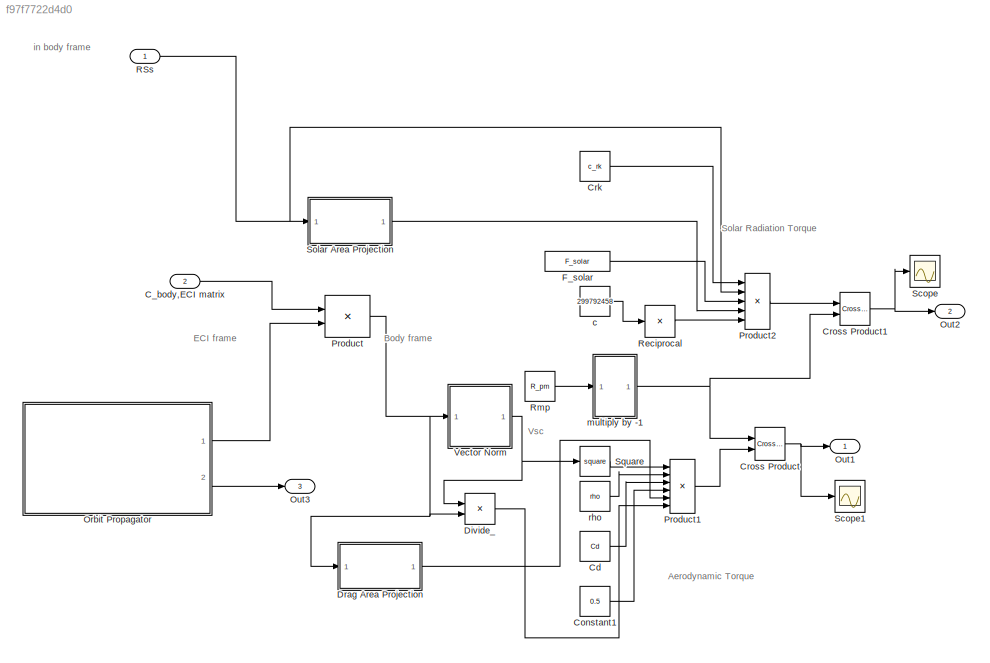
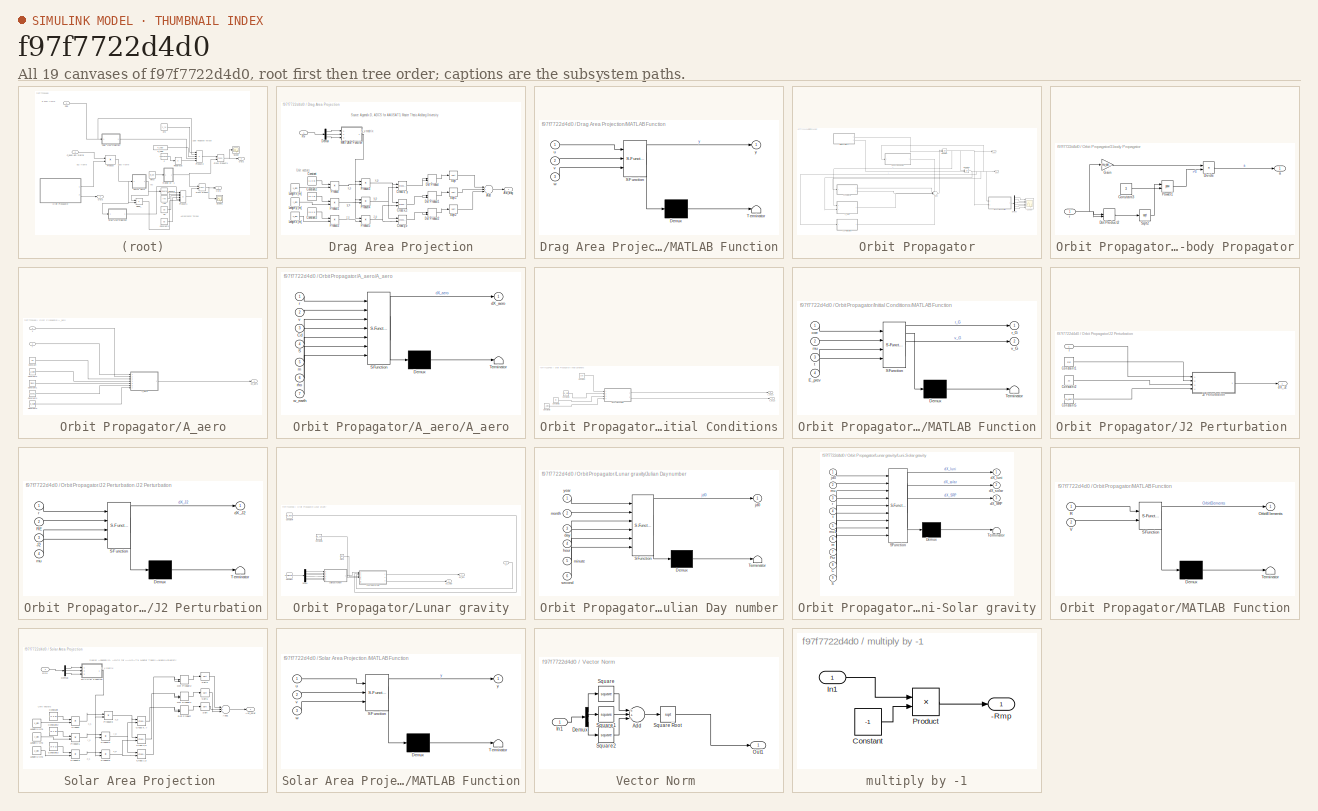
[diagram: thumbnail index - all 19 canvases of the model, root first then tree order]
MODEL slx_f97f7722d4d0
KIND model
CONFIG AbsTol = auto
CONFIG EnableMultiTasking = off
CONFIG FixedStep = auto
CONFIG MaxStep = auto
CONFIG MinStep = auto
CONFIG RelTol = 1e-3
CONFIG SampleTimeConstraint = Unconstrained
CONFIG Solver = VariableStepAuto
CONFIG SolverName = VariableStepAuto
CONFIG StartTime = 0.0
CONFIG StopTime = 10.0
BLOCK [Inport] C_body,ECI matrix
  IconDisplay = Port number
  Port = 2
BLOCK [Constant] Cd 
  Value = Cd
BLOCK [Constant] Constant1
  Value = 0.5
BLOCK [Constant] Crk
  Value = c_rk
BLOCK [Reference] Cross Product  REF=vrlib/Utilities/Cross Product
  Ports = [2, 1]
  SourceBlock = vrlib/Utilities/Cross Product
  SourceProductBaseCode = SL
  SourceProductName = Simulink
  SourceType = Cross Product
BLOCK [Reference] Cross Product1  REF=vrlib/Utilities/Cross Product
  Ports = [2, 1]
  SourceBlock = vrlib/Utilities/Cross Product
  SourceProductBaseCode = SL
  SourceProductName = Simulink
  SourceType = Cross Product
BLOCK [Product] Divide_
  InputSameDT = off
  Inputs = */
  OutDataTypeStr = Inherit: Inherit via internal rule
  Ports = [2, 1]
  RndMeth = Floor
  SaturateOnIntegerOverflow = off
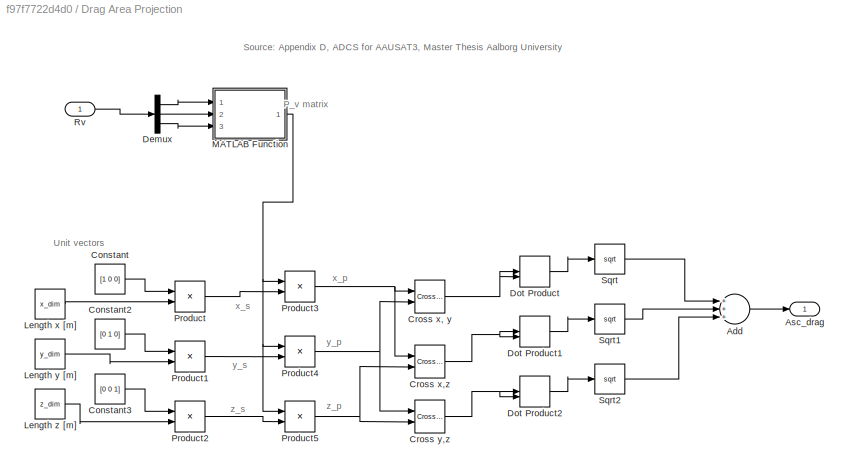
BLOCK [SubSystem] Drag Area Projection
  Ports = [1, 1]
  RequestExecContextInheritance = off
BLOCK [Sum] Drag Area Projection/Add
  InputSameDT = off
  Inputs = +++
  OutDataTypeStr = Inherit: Inherit via internal rule
  Ports = [3, 1]
  SaturateOnIntegerOverflow = off
BLOCK [Outport] Drag Area Projection/Asc_drag
  IconDisplay = Port number
BLOCK [Constant] Drag Area Projection/Constant
  Value = [1 0 0]
BLOCK [Constant] Drag Area Projection/Constant2
  Value = [0 1 0]
BLOCK [Constant] Drag Area Projection/Constant3
  Value = [0 0 1]
BLOCK [Reference] Drag Area Projection/Cross x, y  REF=vrlib/Utilities/Cross Product
  Ports = [2, 1]
  SourceBlock = vrlib/Utilities/Cross Product
  SourceProductBaseCode = SL
  SourceProductName = Simulink
  SourceType = Cross Product
BLOCK [Reference] Drag Area Projection/Cross x,z  REF=vrlib/Utilities/Cross Product
  Ports = [2, 1]
  SourceBlock = vrlib/Utilities/Cross Product
  SourceProductBaseCode = SL
  SourceProductName = Simulink
  SourceType = Cross Product
BLOCK [Reference] Drag Area Projection/Cross y,z  REF=vrlib/Utilities/Cross Product
  Ports = [2, 1]
  SourceBlock = vrlib/Utilities/Cross Product
  SourceProductBaseCode = SL
  SourceProductName = Simulink
  SourceType = Cross Product
BLOCK [Demux] Drag Area Projection/Demux
  DisplayOption = bar
  Outputs = 3
  Ports = [1, 3]
BLOCK [DotProduct] Drag Area Projection/Dot Product
  OutDataTypeStr = Inherit: Inherit via internal rule
BLOCK [DotProduct] Drag Area Projection/Dot Product1
  OutDataTypeStr = Inherit: Inherit via internal rule
BLOCK [DotProduct] Drag Area Projection/Dot Product2
  OutDataTypeStr = Inherit: Inherit via internal rule
BLOCK [Constant] Drag Area Projection/Length x [m]
  Value = x_dim
BLOCK [Constant] Drag Area Projection/Length y [m]
  Value = y_dim
BLOCK [Constant] Drag Area Projection/Length z [m]
  Value = z_dim
BLOCK [SubSystem] Drag Area Projection/MATLAB Function
  ErrorFcn = Stateflow.Translate.translate
  PermitHierarchicalResolution = ExplicitOnly
  Ports = [3, 1]
  RequestExecContextInheritance = off
  SFBlockType = MATLAB Function
  TreatAsAtomicUnit = on
BLOCK [Demux] Drag Area Projection/MATLAB Function/ Demux 
  Outputs = 1
  Ports = [1, 1]
BLOCK [S-Function] Drag Area Projection/MATLAB Function/ SFunction 
  EnableBusSupport = on
  FunctionName = sf_sfun
  PortCounts = [3 2]
  Ports = [3, 2]
  SFcnIsStateOwnerBlock = off
  SFunctionDeploymentMode = off
  Tag = Stateflow S-Function 11
BLOCK [Terminator] Drag Area Projection/MATLAB Function/ Terminator 
BLOCK [Inport] Drag Area Projection/MATLAB Function/u
  IconDisplay = Port number
BLOCK [Inport] Drag Area Projection/MATLAB Function/v
  IconDisplay = Port number
  Port = 2
BLOCK [Inport] Drag Area Projection/MATLAB Function/w
  IconDisplay = Port number
  Port = 3
BLOCK [Outport] Drag Area Projection/MATLAB Function/y
  IconDisplay = Port number
BLOCK [Product] Drag Area Projection/Product
  InputSameDT = off
  OutDataTypeStr = Inherit: Inherit via internal rule
  Ports = [2, 1]
  RndMeth = Floor
  SaturateOnIntegerOverflow = off
BLOCK [Product] Drag Area Projection/Product1
  InputSameDT = off
  OutDataTypeStr = Inherit: Inherit via internal rule
  Ports = [2, 1]
  RndMeth = Floor
  SaturateOnIntegerOverflow = off
BLOCK [Product] Drag Area Projection/Product2
  InputSameDT = off
  OutDataTypeStr = Inherit: Inherit via internal rule
  Ports = [2, 1]
  RndMeth = Floor
  SaturateOnIntegerOverflow = off
BLOCK [Product] Drag Area Projection/Product3
  InputSameDT = off
  Multiplication = Matrix(*)
  OutDataTypeStr = Inherit: Inherit via internal rule
  Ports = [2, 1]
  RndMeth = Floor
  SaturateOnIntegerOverflow = off
BLOCK [Product] Drag Area Projection/Product4
  InputSameDT = off
  Multiplication = Matrix(*)
  OutDataTypeStr = Inherit: Inherit via internal rule
  Ports = [2, 1]
  RndMeth = Floor
  SaturateOnIntegerOverflow = off
BLOCK [Product] Drag Area Projection/Product5
  InputSameDT = off
  Multiplication = Matrix(*)
  OutDataTypeStr = Inherit: Inherit via internal rule
  Ports = [2, 1]
  RndMeth = Floor
  SaturateOnIntegerOverflow = off
BLOCK [Inport] Drag Area Projection/Rv 
  IconDisplay = Port number
BLOCK [Sqrt] Drag Area Projection/Sqrt
BLOCK [Sqrt] Drag Area Projection/Sqrt1
BLOCK [Sqrt] Drag Area Projection/Sqrt2
BLOCK [Constant] F_solar
  Value = F_solar
BLOCK [SubSystem] Orbit Propagator
  Ports = [0, 2]
  RequestExecContextInheritance = off
BLOCK [SubSystem] Orbit Propagator/2-body Propagator
  Ports = [1, 1]
  RequestExecContextInheritance = off
BLOCK [Constant] Orbit Propagator/2-body Propagator/Constant3
  Value = 3
BLOCK [Product] Orbit Propagator/2-body Propagator/Divide
  InputSameDT = off
  Inputs = */
  OutDataTypeStr = Inherit: Inherit via internal rule
  Ports = [2, 1]
  RndMeth = Floor
  SaturateOnIntegerOverflow = off
BLOCK [DotProduct] Orbit Propagator/2-body Propagator/Dot Product2
  OutDataTypeStr = Inherit: Inherit via internal rule
BLOCK [Gain] Orbit Propagator/2-body Propagator/Gain
  Gain = -mu_earth
  OutDataTypeStr = Inherit: Inherit via internal rule
  ParamDataTypeStr = Inherit: Inherit via internal rule
  SaturateOnIntegerOverflow = off
BLOCK [Math] Orbit Propagator/2-body Propagator/Power1
  Operator = pow
  Ports = [2, 1]
BLOCK [Sqrt] Orbit Propagator/2-body Propagator/Sqrt2
BLOCK [Outport] Orbit Propagator/2-body Propagator/a
  IconDisplay = Port number
  VectorParamsAs1DForOutWhenUnconnected = off
BLOCK [Inport] Orbit Propagator/2-body Propagator/r
  IconDisplay = Port number
BLOCK [SubSystem] Orbit Propagator/A_aero
  Commented = on
  Ports = [2, 1]
  RequestExecContextInheritance = off
BLOCK [SubSystem] Orbit Propagator/A_aero/A_aero
  ErrorFcn = Stateflow.Translate.translate
  PermitHierarchicalResolution = ExplicitOnly
  Ports = [7, 1]
  RequestExecContextInheritance = off
  SFBlockType = MATLAB Function
  TreatAsAtomicUnit = on
BLOCK [Demux] Orbit Propagator/A_aero/A_aero/ Demux 
  Outputs = 1
  Ports = [1, 1]
BLOCK [S-Function] Orbit Propagator/A_aero/A_aero/ SFunction 
  EnableBusSupport = on
  FunctionName = sf_sfun
  PortCounts = [7 2]
  Ports = [7, 2]
  SFcnIsStateOwnerBlock = off
  SFunctionDeploymentMode = off
  Tag = Stateflow S-Function 2
BLOCK [Terminator] Orbit Propagator/A_aero/A_aero/ Terminator 
BLOCK [Inport] Orbit Propagator/A_aero/A_aero/Cd
  IconDisplay = Port number
  Port = 3
BLOCK [Inport] Orbit Propagator/A_aero/A_aero/S
  IconDisplay = Port number
  Port = 4
BLOCK [Outport] Orbit Propagator/A_aero/A_aero/dX_aero
  IconDisplay = Port number
  VectorParamsAs1DForOutWhenUnconnected = off
BLOCK [Inport] Orbit Propagator/A_aero/A_aero/m
  IconDisplay = Port number
  Port = 5
BLOCK [Inport] Orbit Propagator/A_aero/A_aero/r
  IconDisplay = Port number
BLOCK [Inport] Orbit Propagator/A_aero/A_aero/rho
  IconDisplay = Port number
  Port = 6
BLOCK [Inport] Orbit Propagator/A_aero/A_aero/v
  IconDisplay = Port number
  Port = 2
BLOCK [Inport] Orbit Propagator/A_aero/A_aero/w_earth
  IconDisplay = Port number
  Port = 7
BLOCK [Constant] Orbit Propagator/A_aero/Constant
  Value = Cd
BLOCK [Constant] Orbit Propagator/A_aero/Constant1
  Value = mass
BLOCK [Constant] Orbit Propagator/A_aero/Constant2
  Value = S_norm
BLOCK [Constant] Orbit Propagator/A_aero/Constant3
  Value = w_earth
BLOCK [Constant] Orbit Propagator/A_aero/Constant4
  Value = 2.01e-12
BLOCK [Outport] Orbit Propagator/A_aero/dX_aero
  IconDisplay = Port number
  VectorParamsAs1DForOutWhenUnconnected = off
BLOCK [Inport] Orbit Propagator/A_aero/r
  IconDisplay = Port number
  Port = 2
BLOCK [Inport] Orbit Propagator/A_aero/v
  IconDisplay = Port number
BLOCK [Demux] Orbit Propagator/Demux
  DisplayOption = bar
  Outputs = 6
  Ports = [1, 6]
BLOCK [SubSystem] Orbit Propagator/Initial Conditions
  Ports = [0, 2]
  RequestExecContextInheritance = off
BLOCK [Constant] Orbit Propagator/Initial Conditions/Constant
  Value = coe
BLOCK [Constant] Orbit Propagator/Initial Conditions/Constant1
  Value = mu_earth
BLOCK [Constant] Orbit Propagator/Initial Conditions/Constant2
  Value = t0
BLOCK [Constant] Orbit Propagator/Initial Conditions/Constant3
  Value = E_prev
BLOCK [SubSystem] Orbit Propagator/Initial Conditions/MATLAB Function
  ErrorFcn = Stateflow.Translate.translate
  PermitHierarchicalResolution = ExplicitOnly
  Ports = [4, 2]
  RequestExecContextInheritance = off
  SFBlockType = MATLAB Function
  TreatAsAtomicUnit = on
BLOCK [Demux] Orbit Propagator/Initial Conditions/MATLAB Function/ Demux 
  Outputs = 1
  Ports = [1, 1]
BLOCK [S-Function] Orbit Propagator/Initial Conditions/MATLAB Function/ SFunction 
  EnableBusSupport = on
  FunctionName = sf_sfun
  PortCounts = [4 3]
  Ports = [4, 3]
  SFcnIsStateOwnerBlock = off
  SFunctionDeploymentMode = off
  Tag = Stateflow S-Function 3
BLOCK [Terminator] Orbit Propagator/Initial Conditions/MATLAB Function/ Terminator 
BLOCK [Inport] Orbit Propagator/Initial Conditions/MATLAB Function/E_prev
  IconDisplay = Port number
  Port = 4
BLOCK [Inport] Orbit Propagator/Initial Conditions/MATLAB Function/coe
  IconDisplay = Port number
BLOCK [Inport] Orbit Propagator/Initial Conditions/MATLAB Function/mu
  IconDisplay = Port number
  Port = 2
BLOCK [Outport] Orbit Propagator/Initial Conditions/MATLAB Function/r_G
  IconDisplay = Port number
  VectorParamsAs1DForOutWhenUnconnected = off
BLOCK [Inport] Orbit Propagator/Initial Conditions/MATLAB Function/t
  IconDisplay = Port number
  Port = 3
BLOCK [Outport] Orbit Propagator/Initial Conditions/MATLAB Function/v_G
  IconDisplay = Port number
  Port = 2
  VectorParamsAs1DForOutWhenUnconnected = off
BLOCK [Outport] Orbit Propagator/Initial Conditions/r_eci_0
  IconDisplay = Port number
  Port = 2
  VectorParamsAs1DForOutWhenUnconnected = off
BLOCK [Outport] Orbit Propagator/Initial Conditions/v_eci_0
  IconDisplay = Port number
  VectorParamsAs1DForOutWhenUnconnected = off
BLOCK [Integrator] Orbit Propagator/Integrator
  InitialCondition = v0
  InitialConditionSource = external
  Ports = [2, 1]
BLOCK [Integrator] Orbit Propagator/Integrator1
  InitialCondition = v0
  InitialConditionSource = external
  Ports = [2, 1]
BLOCK [SubSystem] Orbit Propagator/J2 Perturbation 
  Ports = [1, 1]
  RequestExecContextInheritance = off
BLOCK [Constant] Orbit Propagator/J2 Perturbation /Constant1
  Value = RE
BLOCK [Constant] Orbit Propagator/J2 Perturbation /Constant2
  Value = J2
BLOCK [Constant] Orbit Propagator/J2 Perturbation /Constant5
  Value = mu_earth
BLOCK [SubSystem] Orbit Propagator/J2 Perturbation /J2 Perturbation
  ErrorFcn = Stateflow.Translate.translate
  PermitHierarchicalResolution = ExplicitOnly
  Ports = [4, 1]
  RequestExecContextInheritance = off
  SFBlockType = MATLAB Function
  TreatAsAtomicUnit = on
BLOCK [Demux] Orbit Propagator/J2 Perturbation /J2 Perturbation/ Demux 
  Outputs = 1
  Ports = [1, 1]
BLOCK [S-Function] Orbit Propagator/J2 Perturbation /J2 Perturbation/ SFunction 
  EnableBusSupport = on
  FunctionName = sf_sfun
  PortCounts = [4 2]
  Ports = [4, 2]
  SFcnIsStateOwnerBlock = off
  SFunctionDeploymentMode = off
  Tag = Stateflow S-Function 1
BLOCK [Terminator] Orbit Propagator/J2 Perturbation /J2 Perturbation/ Terminator 
BLOCK [Inport] Orbit Propagator/J2 Perturbation /J2 Perturbation/J2
  IconDisplay = Port number
  Port = 3
BLOCK [Inport] Orbit Propagator/J2 Perturbation /J2 Perturbation/RE
  IconDisplay = Port number
  Port = 2
BLOCK [Outport] Orbit Propagator/J2 Perturbation /J2 Perturbation/dX_J2
  IconDisplay = Port number
  VectorParamsAs1DForOutWhenUnconnected = off
BLOCK [Inport] Orbit Propagator/J2 Perturbation /J2 Perturbation/mu
  IconDisplay = Port number
  Port = 4
BLOCK [Inport] Orbit Propagator/J2 Perturbation /J2 Perturbation/r
  IconDisplay = Port number
BLOCK [Outport] Orbit Propagator/J2 Perturbation /dX_J2
  IconDisplay = Port number
  VectorParamsAs1DForOutWhenUnconnected = off
BLOCK [Inport] Orbit Propagator/J2 Perturbation /r
  IconDisplay = Port number
BLOCK [SubSystem] Orbit Propagator/Lunar gravity
  Commented = on
  Ports = [1, 2]
  RequestExecContextInheritance = off
BLOCK [Clock] Orbit Propagator/Lunar gravity/Clock
BLOCK [Constant] Orbit Propagator/Lunar gravity/Constant
  Value = [year,month,day,hours,minutes,seconds]
BLOCK [Constant] Orbit Propagator/Lunar gravity/Constant4
  Value = mu_moon
BLOCK [Constant] Orbit Propagator/Lunar gravity/Constant6
  Value = mu_sun
BLOCK [Demux] Orbit Propagator/Lunar gravity/Demux
  DisplayOption = bar
  Outputs = 6
  Ports = [1, 6]
BLOCK [SubSystem] Orbit Propagator/Lunar gravity/Julian Day number
  ErrorFcn = Stateflow.Translate.translate
  PermitHierarchicalResolution = ExplicitOnly
  Ports = [6, 1]
  RequestExecContextInheritance = off
  SFBlockType = MATLAB Function
  TreatAsAtomicUnit = on
BLOCK [Demux] Orbit Propagator/Lunar gravity/Julian Day number/ Demux 
  Outputs = 1
  Ports = [1, 1]
BLOCK [S-Function] Orbit Propagator/Lunar gravity/Julian Day number/ SFunction 
  EnableBusSupport = on
  FunctionName = sf_sfun
  PortCounts = [6 2]
  Ports = [6, 2]
  SFcnIsStateOwnerBlock = off
  SFunctionDeploymentMode = off
  Tag = Stateflow S-Function 4
BLOCK [Terminator] Orbit Propagator/Lunar gravity/Julian Day number/ Terminator 
BLOCK [Inport] Orbit Propagator/Lunar gravity/Julian Day number/day
  IconDisplay = Port number
  Port = 3
BLOCK [Inport] Orbit Propagator/Lunar gravity/Julian Day number/hour
  IconDisplay = Port number
  Port = 4
BLOCK [Outport] Orbit Propagator/Lunar gravity/Julian Day number/jd0
  IconDisplay = Port number
  VectorParamsAs1DForOutWhenUnconnected = off
BLOCK [Inport] Orbit Propagator/Lunar gravity/Julian Day number/minute
  IconDisplay = Port number
  Port = 5
BLOCK [Inport] Orbit Propagator/Lunar gravity/Julian Day number/month
  IconDisplay = Port number
  Port = 2
BLOCK [Inport] Orbit Propagator/Lunar gravity/Julian Day number/second
  IconDisplay = Port number
  Port = 6
BLOCK [Inport] Orbit Propagator/Lunar gravity/Julian Day number/year
  IconDisplay = Port number
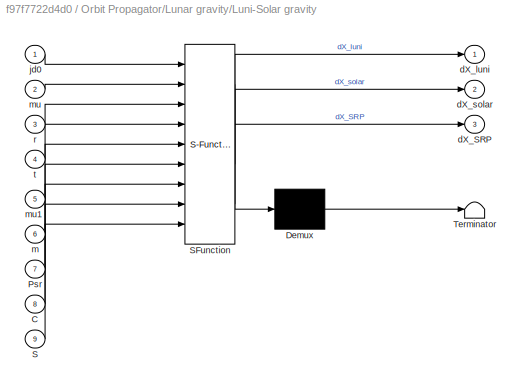
BLOCK [SubSystem] Orbit Propagator/Lunar gravity/Luni-Solar gravity
  ErrorFcn = Stateflow.Translate.translate
  PermitHierarchicalResolution = ExplicitOnly
  Ports = [9, 3]
  RequestExecContextInheritance = off
  SFBlockType = MATLAB Function
  TreatAsAtomicUnit = on
BLOCK [Demux] Orbit Propagator/Lunar gravity/Luni-Solar gravity/ Demux 
  Outputs = 1
  Ports = [1, 1]
BLOCK [S-Function] Orbit Propagator/Lunar gravity/Luni-Solar gravity/ SFunction 
  EnableBusSupport = on
  FunctionName = sf_sfun
  PortCounts = [9 4]
  Ports = [9, 4]
  SFcnIsStateOwnerBlock = off
  SFunctionDeploymentMode = off
  Tag = Stateflow S-Function 5
BLOCK [Terminator] Orbit Propagator/Lunar gravity/Luni-Solar gravity/ Terminator 
BLOCK [Inport] Orbit Propagator/Lunar gravity/Luni-Solar gravity/C
  IconDisplay = Port number
  Port = 8
BLOCK [Inport] Orbit Propagator/Lunar gravity/Luni-Solar gravity/Psr
  IconDisplay = Port number
  Port = 7
BLOCK [Inport] Orbit Propagator/Lunar gravity/Luni-Solar gravity/S
  IconDisplay = Port number
  Port = 9
BLOCK [Outport] Orbit Propagator/Lunar gravity/Luni-Solar gravity/dX_SRP
  IconDisplay = Port number
  Port = 3
  VectorParamsAs1DForOutWhenUnconnected = off
BLOCK [Outport] Orbit Propagator/Lunar gravity/Luni-Solar gravity/dX_luni
  IconDisplay = Port number
  VectorParamsAs1DForOutWhenUnconnected = off
BLOCK [Outport] Orbit Propagator/Lunar gravity/Luni-Solar gravity/dX_solar
  IconDisplay = Port number
  Port = 2
  VectorParamsAs1DForOutWhenUnconnected = off
BLOCK [Inport] Orbit Propagator/Lunar gravity/Luni-Solar gravity/jd0
  IconDisplay = Port number
BLOCK [Inport] Orbit Propagator/Lunar gravity/Luni-Solar gravity/m
  IconDisplay = Port number
  Port = 6
BLOCK [Inport] Orbit Propagator/Lunar gravity/Luni-Solar gravity/mu
  IconDisplay = Port number
  Port = 2
BLOCK [Inport] Orbit Propagator/Lunar gravity/Luni-Solar gravity/mu1
  IconDisplay = Port number
  Port = 5
BLOCK [Inport] Orbit Propagator/Lunar gravity/Luni-Solar gravity/r
  IconDisplay = Port number
  Port = 3
BLOCK [Inport] Orbit Propagator/Lunar gravity/Luni-Solar gravity/t
  IconDisplay = Port number
  Port = 4
BLOCK [Outport] Orbit Propagator/Lunar gravity/dX_luni
  IconDisplay = Port number
  VectorParamsAs1DForOutWhenUnconnected = off
BLOCK [Outport] Orbit Propagator/Lunar gravity/dX_solar
  IconDisplay = Port number
  Port = 2
  VectorParamsAs1DForOutWhenUnconnected = off
BLOCK [Inport] Orbit Propagator/Lunar gravity/r
  IconDisplay = Port number
BLOCK [SubSystem] Orbit Propagator/MATLAB Function
  ErrorFcn = Stateflow.Translate.translate
  PermitHierarchicalResolution = ExplicitOnly
  Ports = [2, 1]
  RequestExecContextInheritance = off
  SFBlockType = MATLAB Function
  TreatAsAtomicUnit = on
BLOCK [Demux] Orbit Propagator/MATLAB Function/ Demux 
  Outputs = 1
  Ports = [1, 1]
BLOCK [S-Function] Orbit Propagator/MATLAB Function/ SFunction 
  EnableBusSupport = on
  FunctionName = sf_sfun
  PortCounts = [2 2]
  Ports = [2, 2]
  SFcnIsStateOwnerBlock = off
  SFunctionDeploymentMode = off
  Tag = Stateflow S-Function 9
BLOCK [Terminator] Orbit Propagator/MATLAB Function/ Terminator 
BLOCK [Outport] Orbit Propagator/MATLAB Function/OrbitElements
  IconDisplay = Port number
  VectorParamsAs1DForOutWhenUnconnected = off
BLOCK [Inport] Orbit Propagator/MATLAB Function/R
  IconDisplay = Port number
BLOCK [Inport] Orbit Propagator/MATLAB Function/V
  IconDisplay = Port number
  Port = 2
BLOCK [Scope] Orbit Propagator/Scope
  Floating = off
  NumInputPorts = 6
  Ports = [6]
  ScopeSpecificationString = Simulink.scopes.TimeScopeBlockCfg('CurrentConfiguration', extmgr.ConfigurationSet(extmgr.Configuration('Core','General UI',true),extmgr.Configuration('Core','Source UI',true),extmgr.Configuration('Sources','WiredSimulink',true,'DataLoggingVariableName','ScopeData2'),extmgr.Configuration('Visuals','Time Domain',true,'SerializedDisplays',{struct('MinYLimReal','6606562.10759','MaxYLimReal','7662454.0...<+4798ch>
BLOCK [Sum] Orbit Propagator/Sum
  IconShape = round
  InputSameDT = off
  Inputs = +++++
  OutDataTypeStr = Inherit: Inherit via internal rule
  Ports = [5, 1]
  SaturateOnIntegerOverflow = off
BLOCK [Outport] Orbit Propagator/r_eci
  IconDisplay = Port number
  Port = 2
  VectorParamsAs1DForOutWhenUnconnected = off
BLOCK [Outport] Orbit Propagator/v_eci
  IconDisplay = Port number
  VectorParamsAs1DForOutWhenUnconnected = off
BLOCK [Outport] Out1
  IconDisplay = Port number
BLOCK [Outport] Out2
  IconDisplay = Port number
  Port = 2
BLOCK [Outport] Out3
  IconDisplay = Port number
  Port = 3
BLOCK [Product] Product
  InputSameDT = off
  Multiplication = Matrix(*)
  OutDataTypeStr = Inherit: Inherit via internal rule
  Ports = [2, 1]
  RndMeth = Floor
  SaturateOnIntegerOverflow = off
BLOCK [Product] Product1
  InputSameDT = off
  Inputs = 6
  OutDataTypeStr = Inherit: Inherit via internal rule
  Ports = [6, 1]
  RndMeth = Floor
  SaturateOnIntegerOverflow = off
BLOCK [Product] Product2
  InputSameDT = off
  Inputs = 5
  OutDataTypeStr = Inherit: Inherit via internal rule
  Ports = [5, 1]
  RndMeth = Floor
  SaturateOnIntegerOverflow = off
BLOCK [Inport] RSs 
  IconDisplay = Port number
BLOCK [Product] Reciprocal
  InputSameDT = off
  Inputs = /
  OutDataTypeStr = Inherit: Inherit via internal rule
  Ports = [1, 1]
  RndMeth = Floor
  SaturateOnIntegerOverflow = off
BLOCK [Constant] Rmp 
  Value = R_pm
BLOCK [Scope] Scope
  Floating = off
  NumInputPorts = 1
  Ports = [1]
  ScopeSpecificationString = Simulink.scopes.TimeScopeBlockCfg('CurrentConfiguration', extmgr.ConfigurationSet(extmgr.Configuration('Core','General UI',true),extmgr.Configuration('Core','Source UI',true),extmgr.Configuration('Sources','WiredSimulink',true,'DataLoggingVariableName','ScopeData1'),extmgr.Configuration('Visuals','Time Domain',true,'SerializedDisplays',{struct('MinYLimReal','-0.00000063','MaxYLimReal','0.00000007'...<+1437ch>
BLOCK [Scope] Scope1
  Floating = off
  NumInputPorts = 1
  Ports = [1]
  ScopeSpecificationString = Simulink.scopes.TimeScopeBlockCfg('CurrentConfiguration', extmgr.ConfigurationSet(extmgr.Configuration('Core','General UI',true),extmgr.Configuration('Core','Source UI',true),extmgr.Configuration('Sources','WiredSimulink',true,'DataLoggingVariableName','ScopeData2'),extmgr.Configuration('Visuals','Time Domain',true,'SerializedDisplays',{struct('MinYLimReal','-0.0000000023','MaxYLimReal','0.0000000...<+1450ch>
BLOCK [SubSystem] Solar Area Projection 
  Ports = [1, 1]
  RequestExecContextInheritance = off
BLOCK [Sum] Solar Area Projection /Add1
  InputSameDT = off
  Inputs = +++
  OutDataTypeStr = Inherit: Inherit via internal rule
  Ports = [3, 1]
  SaturateOnIntegerOverflow = off
BLOCK [Outport] Solar Area Projection /Asc_solar
  IconDisplay = Port number
BLOCK [Constant] Solar Area Projection /Constant
  Value = [1 0 0]
  VectorParams1D = off
BLOCK [Constant] Solar Area Projection /Constant2
  Value = [0 1 0]
  VectorParams1D = off
BLOCK [Constant] Solar Area Projection /Constant3
  Value = [0 0 1]
  VectorParams1D = off
BLOCK [Reference] Solar Area Projection /Cross x, y  REF=vrlib/Utilities/Cross Product
  Ports = [2, 1]
  SourceBlock = vrlib/Utilities/Cross Product
  SourceProductBaseCode = SL
  SourceProductName = Simulink
  SourceType = Cross Product
BLOCK [Reference] Solar Area Projection /Cross x,z  REF=vrlib/Utilities/Cross Product
  Ports = [2, 1]
  SourceBlock = vrlib/Utilities/Cross Product
  SourceProductBaseCode = SL
  SourceProductName = Simulink
  SourceType = Cross Product
BLOCK [Reference] Solar Area Projection /Cross y,z  REF=vrlib/Utilities/Cross Product
  Ports = [2, 1]
  SourceBlock = vrlib/Utilities/Cross Product
  SourceProductBaseCode = SL
  SourceProductName = Simulink
  SourceType = Cross Product
BLOCK [Demux] Solar Area Projection /Demux
  DisplayOption = bar
  Outputs = 3
  Ports = [1, 3]
BLOCK [DotProduct] Solar Area Projection /Dot Product
  OutDataTypeStr = Inherit: Inherit via internal rule
BLOCK [DotProduct] Solar Area Projection /Dot Product1
  OutDataTypeStr = Inherit: Inherit via internal rule
BLOCK [DotProduct] Solar Area Projection /Dot Product2
  OutDataTypeStr = Inherit: Inherit via internal rule
BLOCK [Constant] Solar Area Projection /Length x [m]
  Value = x_dim
BLOCK [Constant] Solar Area Projection /Length y [m]
  Value = y_dim
BLOCK [Constant] Solar Area Projection /Length z [m]
  Value = z_dim
BLOCK [SubSystem] Solar Area Projection /MATLAB Function
  ErrorFcn = Stateflow.Translate.translate
  PermitHierarchicalResolution = ExplicitOnly
  Ports = [3, 1]
  RequestExecContextInheritance = off
  SFBlockType = MATLAB Function
  TreatAsAtomicUnit = on
BLOCK [Demux] Solar Area Projection /MATLAB Function/ Demux 
  Outputs = 1
  Ports = [1, 1]
BLOCK [S-Function] Solar Area Projection /MATLAB Function/ SFunction 
  EnableBusSupport = on
  FunctionName = sf_sfun
  PortCounts = [3 2]
  Ports = [3, 2]
  SFcnIsStateOwnerBlock = off
  SFunctionDeploymentMode = off
  Tag = Stateflow S-Function 6
BLOCK [Terminator] Solar Area Projection /MATLAB Function/ Terminator 
BLOCK [Inport] Solar Area Projection /MATLAB Function/u
  IconDisplay = Port number
BLOCK [Inport] Solar Area Projection /MATLAB Function/v
  IconDisplay = Port number
  Port = 2
BLOCK [Inport] Solar Area Projection /MATLAB Function/w
  IconDisplay = Port number
  Port = 3
BLOCK [Outport] Solar Area Projection /MATLAB Function/y
  IconDisplay = Port number
BLOCK [Product] Solar Area Projection /Product
  InputSameDT = off
  OutDataTypeStr = Inherit: Inherit via internal rule
  Ports = [2, 1]
  RndMeth = Floor
  SaturateOnIntegerOverflow = off
BLOCK [Product] Solar Area Projection /Product1
  InputSameDT = off
  OutDataTypeStr = Inherit: Inherit via internal rule
  Ports = [2, 1]
  RndMeth = Floor
  SaturateOnIntegerOverflow = off
BLOCK [Product] Solar Area Projection /Product2
  InputSameDT = off
  OutDataTypeStr = Inherit: Inherit via internal rule
  Ports = [2, 1]
  RndMeth = Floor
  SaturateOnIntegerOverflow = off
BLOCK [Product] Solar Area Projection /Product3
  InputSameDT = off
  Multiplication = Matrix(*)
  OutDataTypeStr = Inherit: Inherit via internal rule
  Ports = [2, 1]
  RndMeth = Floor
  SaturateOnIntegerOverflow = off
BLOCK [Product] Solar Area Projection /Product4
  InputSameDT = off
  Multiplication = Matrix(*)
  OutDataTypeStr = Inherit: Inherit via internal rule
  Ports = [2, 1]
  RndMeth = Floor
  SaturateOnIntegerOverflow = off
BLOCK [Product] Solar Area Projection /Product5
  InputSameDT = off
  Multiplication = Matrix(*)
  OutDataTypeStr = Inherit: Inherit via internal rule
  Ports = [2, 1]
  RndMeth = Floor
  SaturateOnIntegerOverflow = off
BLOCK [Inport] Solar Area Projection /RSs 
  IconDisplay = Port number
BLOCK [Sqrt] Solar Area Projection /Sqrt
BLOCK [Sqrt] Solar Area Projection /Sqrt1
BLOCK [Sqrt] Solar Area Projection /Sqrt2
BLOCK [Math] Square
  Operator = square
  Ports = [1, 1]
  SignedPower = off
BLOCK [SubSystem] Vector Norm 
  Ports = [1, 1]
  RequestExecContextInheritance = off
BLOCK [Sum] Vector Norm /Add
  InputSameDT = off
  Inputs = +++
  OutDataTypeStr = Inherit: Inherit via internal rule
  Ports = [3, 1]
  SaturateOnIntegerOverflow = off
BLOCK [Demux] Vector Norm /Demux
  DisplayOption = bar
  Outputs = 3
  Ports = [1, 3]
BLOCK [Inport] Vector Norm /In1
  IconDisplay = Port number
BLOCK [Outport] Vector Norm /Out1
  IconDisplay = Port number
BLOCK [Math] Vector Norm /Square
  Operator = square
  Ports = [1, 1]
  SignedPower = off
BLOCK [Sqrt] Vector Norm /Square Root
BLOCK [Math] Vector Norm /Square1
  Operator = square
  Ports = [1, 1]
  SignedPower = off
BLOCK [Math] Vector Norm /Square2
  Operator = square
  Ports = [1, 1]
  SignedPower = off
BLOCK [Constant] c
  Value = 299792458
BLOCK [SubSystem] multiply by -1
  Ports = [1, 1]
  RequestExecContextInheritance = off
BLOCK [Outport] multiply by -1/-Rmp
  IconDisplay = Port number
BLOCK [Constant] multiply by -1/Constant
  Value = -1
BLOCK [Inport] multiply by -1/In1
  IconDisplay = Port number
BLOCK [Product] multiply by -1/Product
  InputSameDT = off
  OutDataTypeStr = Inherit: Inherit via internal rule
  Ports = [2, 1]
  RndMeth = Floor
  SaturateOnIntegerOverflow = off
BLOCK [Constant] rho
  Value = rho
ANNOTATION (root): Aerodynamic Torque
ANNOTATION (root): Body frame
ANNOTATION (root): ECI frame
ANNOTATION (root): Solar Radiation Torque
ANNOTATION (root): Vsc
ANNOTATION (root): in body frame
ANNOTATION Drag Area Projection: P_v matrix
ANNOTATION Drag Area Projection: Source: Appendix D, ADCS for AAUSAT3, Master Thesis Aalborg University
ANNOTATION Drag Area Projection: Unit vectors
ANNOTATION Drag Area Projection: x_p
ANNOTATION Drag Area Projection: x_s
ANNOTATION Drag Area Projection: y_p
ANNOTATION Drag Area Projection: y_s
ANNOTATION Drag Area Projection: z_p
ANNOTATION Drag Area Projection: z_s
ANNOTATION Solar Area Projection : P_v matrix
ANNOTATION Solar Area Projection : Source: Appendix D, ADCS for AAUSAT3, Master Thesis Aalborg University
ANNOTATION Solar Area Projection : Unit vectors
ANNOTATION Solar Area Projection : x_p
ANNOTATION Solar Area Projection : x_s
ANNOTATION Solar Area Projection : y_p
ANNOTATION Solar Area Projection : y_s
ANNOTATION Solar Area Projection : z_p
ANNOTATION Solar Area Projection : z_s
LINE C_body,ECI matrix:1 -> Product:1
LINE Cd :1 -> Product1:3
LINE Constant1:1 -> Product1:4
LINE Crk:1 -> Product2:1
NET Cross Product1:1 -> Out2:1, Scope:1
NET Cross Product:1 -> Out1:1, Scope1:1
LINE Divide_:1 -> Product1:6
LINE Drag Area Projection/Add:1 -> Drag Area Projection/Asc_drag:1
LINE Drag Area Projection/Constant2:1 -> Drag Area Projection/Product1:1
LINE Drag Area Projection/Constant3:1 -> Drag Area Projection/Product2:1
LINE Drag Area Projection/Constant:1 -> Drag Area Projection/Product:1
NET Drag Area Projection/Cross x, y:1 -> Drag Area Projection/Dot Product:1, Drag Area Projection/Dot Product:2
NET Drag Area Projection/Cross x,z:1 -> Drag Area Projection/Dot Product1:1, Drag Area Projection/Dot Product1:2
NET Drag Area Projection/Cross y,z:1 -> Drag Area Projection/Dot Product2:1, Drag Area Projection/Dot Product2:2
LINE Drag Area Projection/Demux:1 -> Drag Area Projection/MATLAB Function:1
LINE Drag Area Projection/Demux:2 -> Drag Area Projection/MATLAB Function:2
LINE Drag Area Projection/Demux:3 -> Drag Area Projection/MATLAB Function:3
LINE Drag Area Projection/Dot Product1:1 -> Drag Area Projection/Sqrt1:1
LINE Drag Area Projection/Dot Product2:1 -> Drag Area Projection/Sqrt2:1
LINE Drag Area Projection/Dot Product:1 -> Drag Area Projection/Sqrt:1
LINE Drag Area Projection/Length x [m]:1 -> Drag Area Projection/Product:2
LINE Drag Area Projection/Length y [m]:1 -> Drag Area Projection/Product1:2
LINE Drag Area Projection/Length z [m]:1 -> Drag Area Projection/Product2:2
NET Drag Area Projection/MATLAB Function:1 -> Drag Area Projection/Product3:1, Drag Area Projection/Product4:1, Drag Area Projection/Product5:1
LINE Drag Area Projection/Product1:1 -> Drag Area Projection/Product4:2
LINE Drag Area Projection/Product2:1 -> Drag Area Projection/Product5:2
NET Drag Area Projection/Product3:1 -> Drag Area Projection/Cross x, y:1, Drag Area Projection/Cross x,z:1
NET Drag Area Projection/Product4:1 -> Drag Area Projection/Cross x, y:2, Drag Area Projection/Cross y,z:1
NET Drag Area Projection/Product5:1 -> Drag Area Projection/Cross x,z:2, Drag Area Projection/Cross y,z:2
LINE Drag Area Projection/Product:1 -> Drag Area Projection/Product3:2
LINE Drag Area Projection/Rv :1 -> Drag Area Projection/Demux:1
LINE Drag Area Projection/Sqrt1:1 -> Drag Area Projection/Add:2
LINE Drag Area Projection/Sqrt2:1 -> Drag Area Projection/Add:3
LINE Drag Area Projection/Sqrt:1 -> Drag Area Projection/Add:1
LINE Drag Area Projection:1 -> Product1:5
LINE F_solar:1 -> Product2:3
LINE Orbit Propagator/2-body Propagator/Constant3:1 -> Orbit Propagator/2-body Propagator/Power1:2
LINE Orbit Propagator/2-body Propagator/Divide:1 -> Orbit Propagator/2-body Propagator/a:1
LINE Orbit Propagator/2-body Propagator/Dot Product2:1 -> Orbit Propagator/2-body Propagator/Sqrt2:1
LINE Orbit Propagator/2-body Propagator/Gain:1 -> Orbit Propagator/2-body Propagator/Divide:1
LINE Orbit Propagator/2-body Propagator/Power1:1 -> Orbit Propagator/2-body Propagator/Divide:2
LINE Orbit Propagator/2-body Propagator/Sqrt2:1 -> Orbit Propagator/2-body Propagator/Power1:1
NET Orbit Propagator/2-body Propagator/r:1 -> Orbit Propagator/2-body Propagator/Dot Product2:1, Orbit Propagator/2-body Propagator/Dot Product2:2, Orbit Propagator/2-body Propagator/Gain:1
LINE Orbit Propagator/2-body Propagator:1 -> Orbit Propagator/Sum:1
LINE Orbit Propagator/A_aero/A_aero:1 -> Orbit Propagator/A_aero/dX_aero:1
LINE Orbit Propagator/A_aero/Constant1:1 -> Orbit Propagator/A_aero/A_aero:5
LINE Orbit Propagator/A_aero/Constant2:1 -> Orbit Propagator/A_aero/A_aero:4
LINE Orbit Propagator/A_aero/Constant3:1 -> Orbit Propagator/A_aero/A_aero:7
LINE Orbit Propagator/A_aero/Constant4:1 -> Orbit Propagator/A_aero/A_aero:6
LINE Orbit Propagator/A_aero/Constant:1 -> Orbit Propagator/A_aero/A_aero:3
LINE Orbit Propagator/A_aero/r:1 -> Orbit Propagator/A_aero/A_aero:1
LINE Orbit Propagator/A_aero/v:1 -> Orbit Propagator/A_aero/A_aero:2
LINE Orbit Propagator/A_aero:1 -> Orbit Propagator/Sum:4
LINE Orbit Propagator/Demux:1 -> Orbit Propagator/Scope:1
LINE Orbit Propagator/Demux:2 -> Orbit Propagator/Scope:2
LINE Orbit Propagator/Demux:3 -> Orbit Propagator/Scope:3
LINE Orbit Propagator/Demux:4 -> Orbit Propagator/Scope:4
LINE Orbit Propagator/Demux:5 -> Orbit Propagator/Scope:5
LINE Orbit Propagator/Demux:6 -> Orbit Propagator/Scope:6
LINE Orbit Propagator/Initial Conditions/Constant1:1 -> Orbit Propagator/Initial Conditions/MATLAB Function:2
LINE Orbit Propagator/Initial Conditions/Constant2:1 -> Orbit Propagator/Initial Conditions/MATLAB Function:3
LINE Orbit Propagator/Initial Conditions/Constant3:1 -> Orbit Propagator/Initial Conditions/MATLAB Function:4
LINE Orbit Propagator/Initial Conditions/Constant:1 -> Orbit Propagator/Initial Conditions/MATLAB Function:1
LINE Orbit Propagator/Initial Conditions/MATLAB Function:1 -> Orbit Propagator/Initial Conditions/r_eci_0:1
LINE Orbit Propagator/Initial Conditions/MATLAB Function:2 -> Orbit Propagator/Initial Conditions/v_eci_0:1
LINE Orbit Propagator/Initial Conditions:1 -> Orbit Propagator/Integrator:2
LINE Orbit Propagator/Initial Conditions:2 -> Orbit Propagator/Integrator1:2
NET Orbit Propagator/Integrator1:1 -> Orbit Propagator/2-body Propagator:1, Orbit Propagator/A_aero:2, Orbit Propagator/J2 Perturbation :1, Orbit Propagator/Lunar gravity:1, Orbit Propagator/MATLAB Function:1, Orbit Propagator/r_eci:1
NET Orbit Propagator/Integrator:1 -> Orbit Propagator/A_aero:1, Orbit Propagator/Integrator1:1, Orbit Propagator/MATLAB Function:2, Orbit Propagator/v_eci:1
LINE Orbit Propagator/J2 Perturbation /Constant1:1 -> Orbit Propagator/J2 Perturbation /J2 Perturbation:2
LINE Orbit Propagator/J2 Perturbation /Constant2:1 -> Orbit Propagator/J2 Perturbation /J2 Perturbation:3
LINE Orbit Propagator/J2 Perturbation /Constant5:1 -> Orbit Propagator/J2 Perturbation /J2 Perturbation:4
LINE Orbit Propagator/J2 Perturbation /J2 Perturbation:1 -> Orbit Propagator/J2 Perturbation /dX_J2:1
LINE Orbit Propagator/J2 Perturbation /r:1 -> Orbit Propagator/J2 Perturbation /J2 Perturbation:1
LINE Orbit Propagator/J2 Perturbation :1 -> Orbit Propagator/Sum:5
LINE Orbit Propagator/Lunar gravity/Clock:1 -> Orbit Propagator/Lunar gravity/Luni-Solar gravity:4
LINE Orbit Propagator/Lunar gravity/Constant4:1 -> Orbit Propagator/Lunar gravity/Luni-Solar gravity:2
LINE Orbit Propagator/Lunar gravity/Constant6:1 -> Orbit Propagator/Lunar gravity/Luni-Solar gravity:5
LINE Orbit Propagator/Lunar gravity/Constant:1 -> Orbit Propagator/Lunar gravity/Demux:1
LINE Orbit Propagator/Lunar gravity/Demux:1 -> Orbit Propagator/Lunar gravity/Julian Day number:1
LINE Orbit Propagator/Lunar gravity/Demux:2 -> Orbit Propagator/Lunar gravity/Julian Day number:2
LINE Orbit Propagator/Lunar gravity/Demux:3 -> Orbit Propagator/Lunar gravity/Julian Day number:3
LINE Orbit Propagator/Lunar gravity/Demux:4 -> Orbit Propagator/Lunar gravity/Julian Day number:4
LINE Orbit Propagator/Lunar gravity/Demux:5 -> Orbit Propagator/Lunar gravity/Julian Day number:5
LINE Orbit Propagator/Lunar gravity/Demux:6 -> Orbit Propagator/Lunar gravity/Julian Day number:6
LINE Orbit Propagator/Lunar gravity/Julian Day number:1 -> Orbit Propagator/Lunar gravity/Luni-Solar gravity:1
LINE Orbit Propagator/Lunar gravity/Luni-Solar gravity:1 -> Orbit Propagator/Lunar gravity/dX_luni:1
LINE Orbit Propagator/Lunar gravity/Luni-Solar gravity:2 -> Orbit Propagator/Lunar gravity/dX_solar:1
LINE Orbit Propagator/Lunar gravity/r:1 -> Orbit Propagator/Lunar gravity/Luni-Solar gravity:3
LINE Orbit Propagator/Lunar gravity:1 -> Orbit Propagator/Sum:2
LINE Orbit Propagator/Lunar gravity:2 -> Orbit Propagator/Sum:3
LINE Orbit Propagator/MATLAB Function:1 -> Orbit Propagator/Demux:1
LINE Orbit Propagator/Sum:1 -> Orbit Propagator/Integrator:1
LINE Orbit Propagator:1 -> Product:2
LINE Orbit Propagator:2 -> Out3:1
LINE Product1:1 -> Cross Product:2
LINE Product2:1 -> Cross Product1:1
NET Product:1 -> Divide_:2, Drag Area Projection:1, Vector Norm :1
NET RSs :1 -> Product2:2, Solar Area Projection :1
LINE Reciprocal:1 -> Product2:5
LINE Rmp :1 -> multiply by -1:1
LINE Solar Area Projection /Add1:1 -> Solar Area Projection /Asc_solar:1
LINE Solar Area Projection /Constant2:1 -> Solar Area Projection /Product1:1
LINE Solar Area Projection /Constant3:1 -> Solar Area Projection /Product2:1
LINE Solar Area Projection /Constant:1 -> Solar Area Projection /Product:1
NET Solar Area Projection /Cross x, y:1 -> Solar Area Projection /Dot Product:1, Solar Area Projection /Dot Product:2
NET Solar Area Projection /Cross x,z:1 -> Solar Area Projection /Dot Product1:1, Solar Area Projection /Dot Product1:2
NET Solar Area Projection /Cross y,z:1 -> Solar Area Projection /Dot Product2:1, Solar Area Projection /Dot Product2:2
LINE Solar Area Projection /Demux:1 -> Solar Area Projection /MATLAB Function:1
LINE Solar Area Projection /Demux:2 -> Solar Area Projection /MATLAB Function:2
LINE Solar Area Projection /Demux:3 -> Solar Area Projection /MATLAB Function:3
LINE Solar Area Projection /Dot Product1:1 -> Solar Area Projection /Sqrt1:1
LINE Solar Area Projection /Dot Product2:1 -> Solar Area Projection /Sqrt2:1
LINE Solar Area Projection /Dot Product:1 -> Solar Area Projection /Sqrt:1
LINE Solar Area Projection /Length x [m]:1 -> Solar Area Projection /Product:2
LINE Solar Area Projection /Length y [m]:1 -> Solar Area Projection /Product1:2
LINE Solar Area Projection /Length z [m]:1 -> Solar Area Projection /Product2:2
NET Solar Area Projection /MATLAB Function:1 -> Solar Area Projection /Product3:2, Solar Area Projection /Product4:2, Solar Area Projection /Product5:2
LINE Solar Area Projection /Product1:1 -> Solar Area Projection /Product4:1
LINE Solar Area Projection /Product2:1 -> Solar Area Projection /Product5:1
NET Solar Area Projection /Product3:1 -> Solar Area Projection /Cross x, y:1, Solar Area Projection /Cross x,z:1
NET Solar Area Projection /Product4:1 -> Solar Area Projection /Cross x, y:2, Solar Area Projection /Cross y,z:1
NET Solar Area Projection /Product5:1 -> Solar Area Projection /Cross x,z:2, Solar Area Projection /Cross y,z:2
LINE Solar Area Projection /Product:1 -> Solar Area Projection /Product3:1
LINE Solar Area Projection /RSs :1 -> Solar Area Projection /Demux:1
LINE Solar Area Projection /Sqrt1:1 -> Solar Area Projection /Add1:3
LINE Solar Area Projection /Sqrt2:1 -> Solar Area Projection /Add1:1
LINE Solar Area Projection /Sqrt:1 -> Solar Area Projection /Add1:2
LINE Solar Area Projection :1 -> Product2:4
LINE Square:1 -> Product1:1
LINE Vector Norm /Add:1 -> Vector Norm /Square Root:1
LINE Vector Norm /Demux:1 -> Vector Norm /Square:1
LINE Vector Norm /Demux:2 -> Vector Norm /Square1:1
LINE Vector Norm /Demux:3 -> Vector Norm /Square2:1
LINE Vector Norm /In1:1 -> Vector Norm /Demux:1
LINE Vector Norm /Square Root:1 -> Vector Norm /Out1:1
LINE Vector Norm /Square1:1 -> Vector Norm /Add:2
LINE Vector Norm /Square2:1 -> Vector Norm /Add:3
LINE Vector Norm /Square:1 -> Vector Norm /Add:1
NET Vector Norm :1 -> Divide_:1, Square:1
LINE c:1 -> Reciprocal:1
LINE multiply by -1/Constant:1 -> multiply by -1/Product:2
LINE multiply by -1/In1:1 -> multiply by -1/Product:1
LINE multiply by -1/Product:1 -> multiply by -1/-Rmp:1
NET multiply by -1:1 -> Cross Product1:2, Cross Product:1
LINE rho:1 -> Product1:2
note: NET lines group one-source signal fan-out (src -> all destinations, sorted); 1:1 wires keep LINE
CHART Orbit Propagator/J2 Perturbation /J2 Perturbation states=1 transitions=1
  STATE_LABEL 'eML_blk_kernel()'
  STATE_LABEL 'SCRIPT:\nfunction dX_J2 = J2(r,RE,J2,mu)\nrpp = norm(r);\nxx = r(1); yy = r(2); zz = r(3);\nfac = 3/2*J2*(mu/rpp^2)*(RE/rpp)^2;\ndX_J2 = -fac*[(1 - 5*(zz/rpp)^2)*(xx/rpp) ...\n(1 - 5*(zz/rpp)^2)*(yy/rpp) ...\n(3 - 5*(zz/rpp)^2)*(zz/rpp)];\nend\n'
CHART Orbit Propagator/A_aero/A_aero states=1 transitions=1
  STATE_LABEL 'eML_blk_kernel()'
  STATE_LABEL 'SCRIPT:\nfunction dX_aero = Aero(r,v,Cd,S,m,rho,w_earth)\nsg = (Cd*S/2*m);\nva = v - cross(w_earth,r);\nv_a = norm(va);\n\ndX_aero = sg*rho*(v_a^2)*(va/v_a);\n\nend\n'
CHART Orbit Propagator/Initial Conditions/MATLAB Function states=1 transitions=1
  STATE_LABEL 'eML_blk_kernel()'
  STATE_LABEL 'SCRIPT:\nfunction [r_G,v_G] = OrbMech(coe,mu, t, E_prev)\n%ORBMECH models the orbital mechanics of the spacecraft\n%   Assuming an ideal, non-perturbed orbit, the position of\n%   the spacecraft (in the inertial frame) is determined, using the ISS\n%   orbital elements\n\na = coe(1);e=coe(2);i=coe(3);raan=coe(4);w = coe(5);t0=coe(6);\n\n% Solve for Eccentric Anomaly (E)\nE_fun = @(E) E-e*sin(E) - sqrt(mu/a^...<+634ch>'
CHART Orbit Propagator/Lunar gravity/Julian Day number states=1 transitions=1
  STATE_LABEL 'eML_blk_kernel()'
  STATE_LABEL 'SCRIPT:\nfunction jd0 = JDnumber(year,month,day,hour,minute,second)\n% Calculates the JD number for a given year,month and day\n\nj0 = 367*year - fix(7*(year + fix((month + 9)/12))/4) + fix(275*month/9) + day + 1721013.5; \n\nut = hour + minute/60 + second/3600; % UTC time in hour format\n\njd0 = j0 + ut/24; % JD number calculation\n\n\nend\n\n'
CHART Orbit Propagator/Lunar gravity/Luni-Solar gravity states=1 transitions=1
  STATE_LABEL 'eML_blk_kernel()'
  STATE_LABEL 'SCRIPT:\nfunction [dX_luni,dX_solar,dX_SRP] = LuniSolar(jd0,mu,r,t,mu1,m,Psr,C,S)\n% Moon gravity contribution\njd_new = jd0 + t/86400;\nR_moon = Lunargravity(jd_new);\nR_ms = R_moon - r;\nr_ms = norm(R_ms);\nr_moon = norm(R_moon);\n\n% Sun gravity contribution\n[R_sun,u_sun] = Solargravity(jd_new);\nlswitch = los(r,R_sun);\nr_sun = norm(R_sun);\nR_ss = R_sun - r;\nr_ss = norm(R_ss);\nq = dot(r,(2*R_sun - r))/r_...<+202ch>'
CHART Solar Area Projection
/MATLAB Function states=1 transitions=1
  STATE_LABEL 'eML_blk_kernel()'
  STATE_LABEL 'SCRIPT:\nfunction y = fcn(u,v,w)\nc=1/(norm(u))^2;\nR_1=u;\nR_2=v;\nR_3=w;\n\nmatrix=zeros(3,3);\n\nmatrix(1,1)=R_2^2+R_3^2;\nmatrix(1,2)=-R_1*R_2;\nmatrix(1,3)=-R_1*R_3;\n\nmatrix(2,1)=-R_1*R_2;\nmatrix(2,2)=R_1^2+R_3^2;\nmatrix(2,3)=-R_2*R_3;\n\nmatrix(3,1)=-R_1*R_3;\nmatrix(3,2)=-R_2*R_3;\nmatrix(3,3)=R_1^2+R_2^2;\n\ny=c*matrix;\n\nend\n\n'
CHART Orbit Propagator/MATLAB Function states=1 transitions=1
  STATE_LABEL 'eML_blk_kernel()'
  STATE_LABEL 'SCRIPT:\nfunction OrbitElements = StateVectorToOrbitElements(R,V)\n%{\nINPUTS:\nR: Radius Vector in ECI [km]\nV: Velocity Vector in ECI [km/s]\n\nOUTPUTS:\nStruct called "OrbitElements" with the format:\n    \'a\'     Semimajor Axis [m]\n    \'e\'     Eccentricity Magnitude\n    \'i\'     Inclination [deg]\n    \'w\'     Argument of Periapse [deg]\n    \'RAAN\'  Right Ascension of the Ascending Node [deg]\n    \'v\'     Tr...<+1671ch>'
CHART Drag Area Projection/MATLAB Function states=1 transitions=1
  STATE_LABEL 'eML_blk_kernel()'
  STATE_LABEL 'SCRIPT:\nfunction y = fcn(u,v,w)\nc=1/(norm(u))^2;\n\nR_1=u;\nR_2=v;\nR_3=w;\n\nmatrix=zeros(3,3);\n\nmatrix(1,1)=R_2^2+R_3^2;\nmatrix(1,2)=-R_1*R_2;\nmatrix(1,3)=-R_1*R_3;\n\nmatrix(2,1)=-R_1*R_2;\nmatrix(2,2)=R_1^2+R_3^2;\nmatrix(2,3)=-R_2*R_3;\n\nmatrix(3,1)=-R_1*R_3;\nmatrix(3,2)=-R_2*R_3;\nmatrix(3,3)=R_1^2+R_2^2;\n\ny=c*matrix;\n\nend\n\n'
